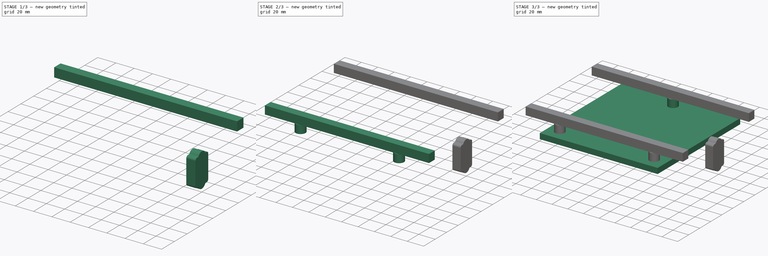
[diagram: build sequence overview — one tinted view per stage of 3, left to right]
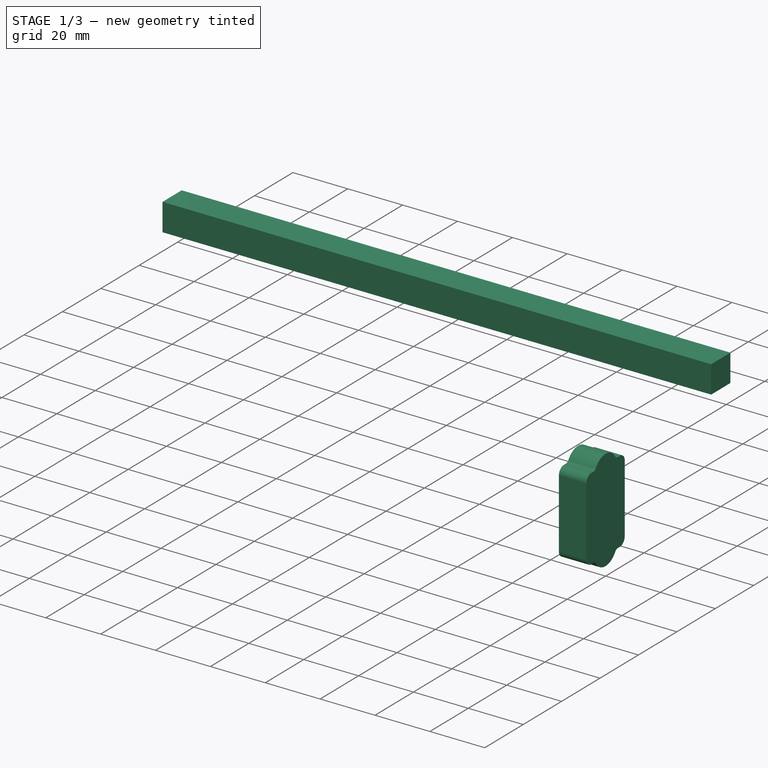
[diagram: stage 1 of 3 — iso view after this stage's code; geometry added in this stage tinted green]
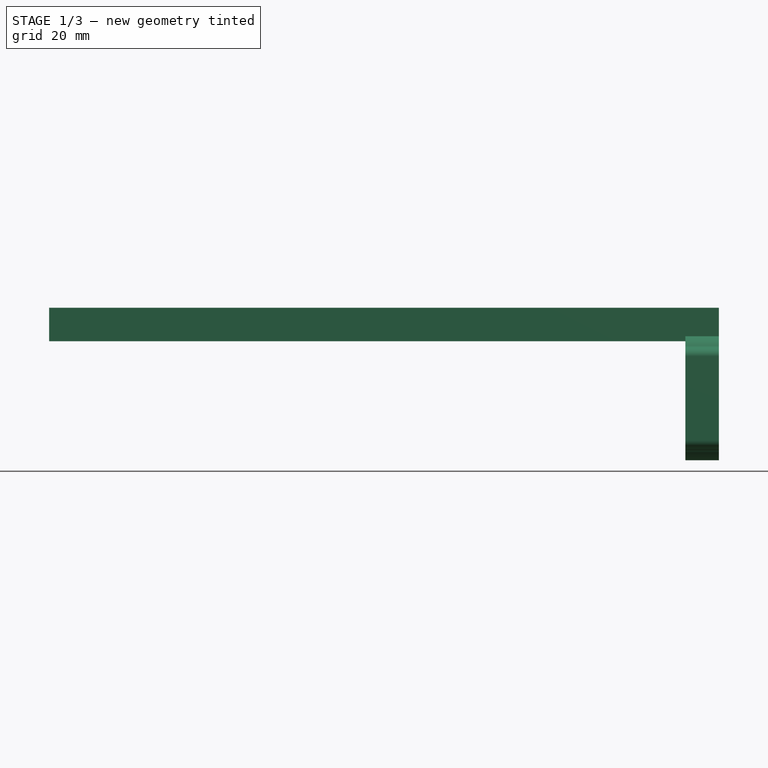
[diagram: stage 1 of 3 — front view after this stage's code; geometry added in this stage tinted green]
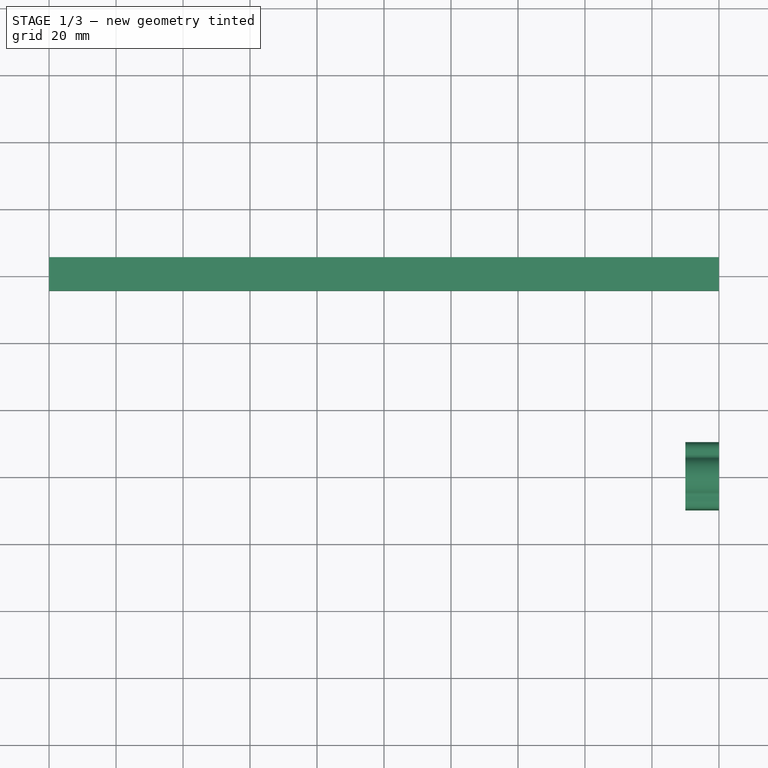
[diagram: stage 1 of 3 — top view after this stage's code; geometry added in this stage tinted green]
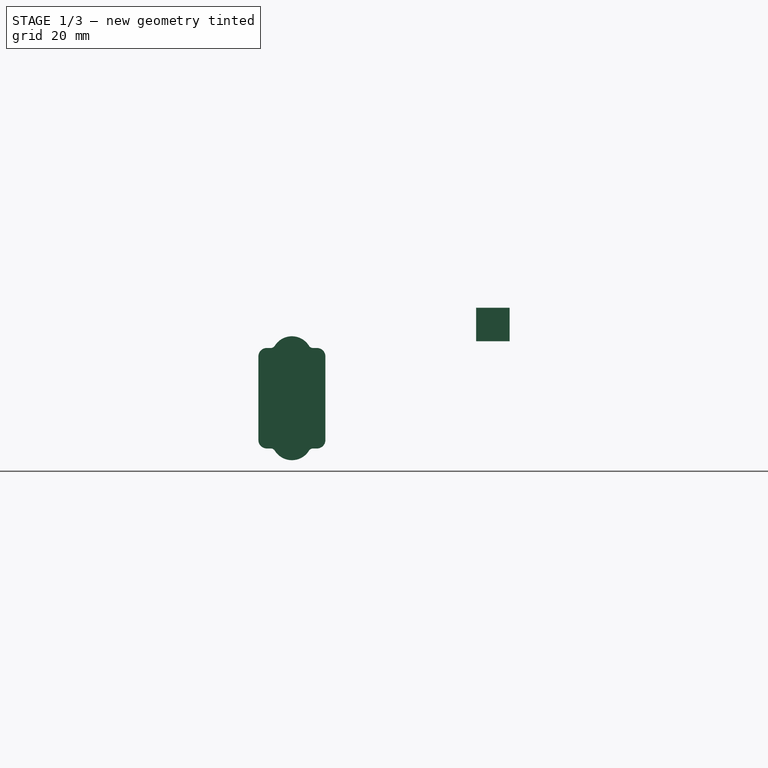
[diagram: stage 1 of 3 — right view after this stage's code; geometry added in this stage tinted green]
FCSTD DOCUMENT  (FreeCAD 0.20R29177 (Git))
Label: miniXY-PrintBed
License: All rights reserved
LicenseURL: http://en.wikipedia.org/wiki/All_rights_reserved
objects: Sketcher::SketchObject×7, PartDesign::Pad×7, PartDesign::Body×7, PartDesign::CoordinateSystem×3, App::DocumentObjectGroup×3, App::Part×3, App::Link×2, App::FeaturePython×1
note: 31 computed .brp shape members not serialized (recipe doc carries the construction recipe); baked Part::Feature solids carry a one-line shape summary decoded from their .brp

FEATURE [PartDesign::Body] Body004  label="FrameFront"
  Group = -> [Sketch004,Pad004]
  Origin = -> Origin006
  Tip = -> Pad004
FEATURE [Sketcher::SketchObject] Sketch005
  FullyConstrained = true
  MapMode = 5
  Placement = pos=(0,0,0) rot=(0.57735,0.57735,0.57735;2.0944rad)
  Support = -> [YZ_Plane007]
  expr: Constraints[11] = <<Variables>>.BedSize / 2 - 15
  expr: Constraints[12] = 10 + <<Variables>>.BedThickness
  sketch-geometry (5):
    g0: LineSegment StartX=55 StartY=27 StartZ=0 EndX=65 EndY=27 EndZ=0
    g1: LineSegment StartX=65 StartY=27 StartZ=0 EndX=65 EndY=17 EndZ=0
    g2: LineSegment StartX=65 StartY=17 StartZ=0 EndX=55 EndY=17 EndZ=0
    g3: LineSegment StartX=55 StartY=17 StartZ=0 EndX=55 EndY=27 EndZ=0
    g4: GeomPoint X=60 Y=22 Z=0
  constraints (13):
    c: Coincident(g0,g1)
    c: Coincident(g1,g2)
    c: Coincident(g2,g3)
    c: Coincident(g3,g0)
    c: Horizontal(g0)
    c: Horizontal(g2)
    c: Vertical(g1)
    c: Vertical(g3)
    c: Symmetric(g0,g1,g4)
    c: Equal(g0,g3)
    c: Distance(g3) = 10
    c: DistanceX(g4) = 60
    c: DistanceY(g2) = 17
FEATURE [PartDesign::Pad] Pad005
  Direction = (1,-2e-16,3e-16)
  Length = 200
  Length2 = 10
  Midplane = true
  Placement = pos=(0,0,0) rot=(0.57735,0.57735,0.57735;2.0944rad)
  Profile = -> Sketch005
  ReferenceAxis = -> Sketch005 [N_Axis]
  Type = 0
  expr: Length = <<Variables>>.GantorySpacing
FEATURE [PartDesign::Body] Body005  label="FrameRear"
  Group = -> [Sketch005,Pad005]
  Origin = -> Origin007
  Tip = -> Pad005
FEATURE [Sketcher::SketchObject] Sketch006
  AttachmentOffset = pos=(0,0,100) rot=(0,0,1;0rad)
  FullyConstrained = true
  MapMode = 5
  Placement = pos=(100,-2.22e-14,2.22e-14) rot=(0.57735,0.57735,0.57735;2.0944rad)
  Support = -> [YZ_Plane008]
  expr: .AttachmentOffset.Base.z = Variables.GantorySpacing / 2
  sketch-geometry (20):
    g0: LineSegment StartX=10 StartY=12.5 StartZ=0 EndX=10 EndY=-12.5 EndZ=0
    g1: LineSegment StartX=-10 StartY=-12.5 StartZ=0 EndX=-10 EndY=12.5 EndZ=0
    g2: ArcOfCircle CenterX=-7.5 CenterY=12.5 CenterZ=0 NormalX=0 NormalY=0 NormalZ=1 AngleXU=0 Radius=2.5 StartAngle=1.5708 EndAngle=3.14159
    g3: GeomPoint X=-10 Y=15 Z=0
    g4: ArcOfCircle CenterX=-7.5 CenterY=-12.5 CenterZ=0 NormalX=0 NormalY=0 NormalZ=1 AngleXU=0 Radius=2.5 StartAngle=3.14159 EndAngle=4.71239
    g5: GeomPoint X=-10 Y=-15 Z=0
    g6: ArcOfCircle CenterX=7.5 CenterY=-12.5 CenterZ=0 NormalX=0 NormalY=0 NormalZ=1 AngleXU=0 Radius=2.5 StartAngle=4.71239 EndAngle=6.28319
    g7: GeomPoint X=10 Y=-15 Z=0
    g8: ArcOfCircle CenterX=7.5 CenterY=12.5 CenterZ=0 NormalX=0 NormalY=0 NormalZ=1 AngleXU=0 Radius=2.5 StartAngle=0 EndAngle=1.5708
    g9: GeomPoint X=10 Y=15 Z=0
    g10: ArcOfCircle CenterX=0 CenterY=12.5 CenterZ=0 NormalX=0 NormalY=0 NormalZ=1 AngleXU=0 Radius=6 StartAngle=0.562536 EndAngle=2.57906
    g11: ArcOfCircle CenterX=-6.34429 CenterY=16.5 CenterZ=0 NormalX=0 NormalY=0 NormalZ=1 AngleXU=0 Radius=1.5 StartAngle=4.71239 EndAngle=5.72065
    g12: ArcOfCircle CenterX=6.34429 CenterY=16.5 CenterZ=0 NormalX=0 NormalY=0 NormalZ=1 AngleXU=0 Radius=1.5 StartAngle=3.70413 EndAngle=4.71239
    g13: ArcOfCircle CenterX=0 CenterY=-12.5 CenterZ=0 NormalX=0 NormalY=0 NormalZ=1 AngleXU=0 Radius=6 StartAngle=3.70413 EndAngle=5.72065
    g14: ArcOfCircle CenterX=-6.34429 CenterY=-16.5 CenterZ=0 NormalX=0 NormalY=0 NormalZ=1 AngleXU=0 Radius=1.5 StartAngle=0.562536 EndAngle=1.5708
    g15: ArcOfCircle CenterX=6.34429 CenterY=-16.5 CenterZ=0 NormalX=0 NormalY=0 NormalZ=1 AngleXU=0 Radius=1.5 StartAngle=1.5708 EndAngle=2.57906
    g16: LineSegment StartX=-7.5 StartY=15 StartZ=0 EndX=-6.34429 EndY=15 EndZ=0
    g17: LineSegment StartX=6.34429 StartY=15 StartZ=0 EndX=7.5 EndY=15 EndZ=0
    g18: LineSegment StartX=-6.34429 StartY=-15 StartZ=0 EndX=-7.5 EndY=-15 EndZ=0
    g19: LineSegment StartX=7.5 StartY=-15 StartZ=0 EndX=6.34429 EndY=-15 EndZ=0
  constraints (46):
    c: Vertical(g0)
    c: Vertical(g1)
    c: Symmetric(g3,g7,g-1)
    c: PointOnObject(g3,g1)
    c: Tangent(g16,g2) = 1.5708
    c: Tangent(g1,g2) = 1.5708
    c: PointOnObject(g5,g1)
    c: Tangent(g1,g4) = 1.5708
    c: Tangent(g18,g4) = 1.5708
    c: PointOnObject(g7,g0)
    c: Tangent(g19,g6) = 1.5708
    c: Tangent(g0,g6) = 1.5708
    c: PointOnObject(g9,g0)
    c: Tangent(g0,g8) = 1.5708
    c: Tangent(g17,g8) = 1.5708
    c: Equal(g2,g4)
    c: Radius(g2) = 2.5
    c: Tangent(g10,g11) = 1.5708
    c: Tangent(g10,g12) = 1.5708
    c: PointOnObject(g10,g-2)
    c: Horizontal(g16)
    c: PointOnObject(g3,g16)
    c: Horizontal(g17)
    c: PointOnObject(g9,g17)
    c: Tangent(g11,g16) = -1.5708
    c: Tangent(g12,g17) = -1.5708
    c: Diameter(g10) = 12
    c: Equal(g11,g12)
    c: Diameter(g11) = 3
    c: Tangent(g14,g13) = 1.5708
    c: Tangent(g13,g15) = 1.5708
    c: Horizontal(g18)
    c: PointOnObject(g5,g18)
    c: Horizontal(g19)
    c: PointOnObject(g7,g19)
    c: Tangent(g14,g18) = -1.5708
    c: Symmetric(g13,g10,g-1)
    c: Tangent(g15,g19) = -1.5708
    c: Equal(g14,g11)
    c: Equal(g15,g11)
    c: Equal(g13,g10)
    c: DistanceY(g5,g3) = 30
    c: DistanceX(g3,g9) = 20
    c: Symmetric(g2,g8,g-2)
    c: Symmetric(g6,g4,g-2)
    c: DistanceY(g13,g10) = 25
FEATURE [PartDesign::Pad] Pad006
  Direction = (1,-2e-16,3e-16)
  Length = 10
  Length2 = 10
  Placement = pos=(0,0,0) rot=(0.57735,0.57735,0.57735;2.0944rad)
  Profile = -> Sketch006
  ReferenceAxis = -> Sketch006 [N_Axis]
  Reversed = true
  Type = 0
FEATURE [PartDesign::Body] Body006  label="CarriageLeftBase"
  Group = -> [Sketch006,Pad006]
  Origin = -> Origin008
  Tip = -> Pad006
FEATURE [PartDesign::CoordinateSystem] LCS_PrintBedOrigin
  AttacherType = Attacher::AttachEngine3D
  AttachmentOffset = pos=(0,0,-22) rot=(0,0,-1;1.5708rad)
  MapMode = 3
  Placement = pos=(-2.4e-15,2.4e-15,22) rot=(0,1,0;3.14159rad)
  Support = -> [Y_Axis001]
FEATURE [App::Part] Part  label="PrintBed"
  Group = -> [Body,Body001,Body002,Body003,Body004,Body005,LCS_PrintBedOrigin]
  Origin = -> Origin001
FEATURE [App::Link] PrintBed  label="PrintBed001"
  AssemblyType = Part::Link
  AttachedBy = #LCS_PrintBedOrigin
  AttachedTo = Parent Assembly#LCS_Origin
  LinkPlacement = pos=(1e-16,0,22) rot=(0,-1,0;3.14159rad)
  LinkedObject = -> Part
  Placement = pos=(1e-16,0,22) rot=(0,-1,0;3.14159rad)
  SolverId = Asm4EE
  expr: Placement = LCS_Origin.Placement * AttachmentOffset * LCS_PrintBedOrigin.Placement ^ -1
FEATURE [App::Link] CarriageLeft  label="CarriageLeft001"
  AttachedBy = #LCS_CarriageLeftOrigin
  AttachedTo = Parent Assembly#LCS_Origin
  LinkPlacement = pos=(0,0,0) rot=(0,-1,0;3.14159rad)
  LinkedObject = -> Part001
  Placement = pos=(0,0,0) rot=(0,-1,0;3.14159rad)
  SolverId = Asm4EE
  expr: Placement = LCS_Origin.Placement * AttachmentOffset * LCS_CarriageLeftOrigin.Placement ^ -1
FEATURE [App::Part] Model
  Group = -> [LCS_Origin,Constraints,Variables,Configurations,PrintBed,CarriageLeft]
  Origin = -> Origin
  Type = Assembly
FEATURE [PartDesign::CoordinateSystem] LCS_CarriageLeftOrigin
  AttacherType = Attacher::AttachEngine3D
  AttachmentOffset = pos=(0,0,0) rot=(0,0,-1;1.5708rad)
  MapMode = 3
  Placement = pos=(0,0,0) rot=(0,1,0;3.14159rad)
  Support = -> [Y_Axis009]
FEATURE [App::Part] Part001  label="CarriageLeft"
  Group = -> [Body006,LCS_CarriageLeftOrigin]
  Origin = -> Origin009
FEATURE [App::DocumentObjectGroup] Parts
  Group = -> [Part,Part001]
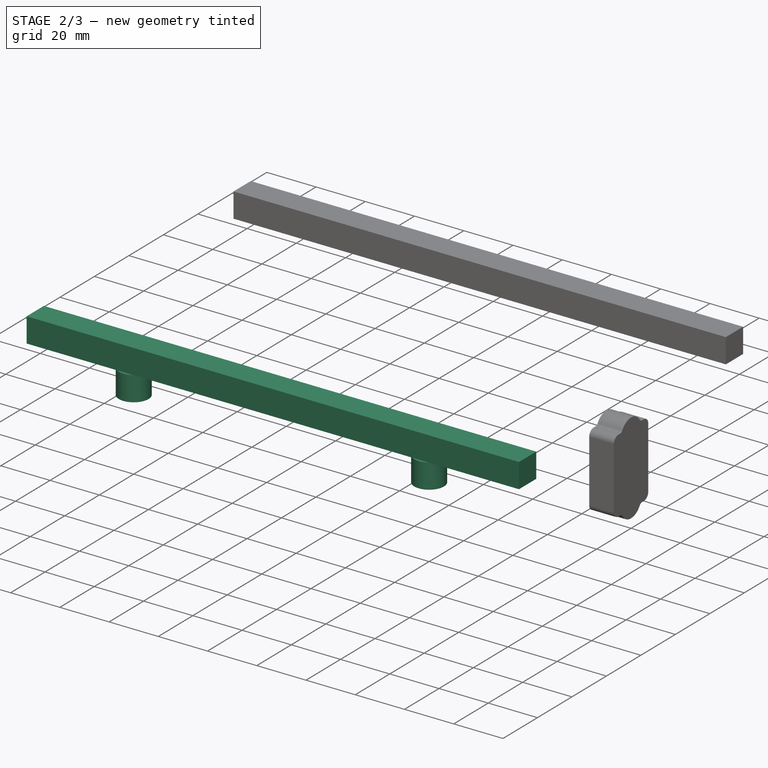
[diagram: stage 2 of 3 — iso view after this stage's code; geometry added in this stage tinted green]
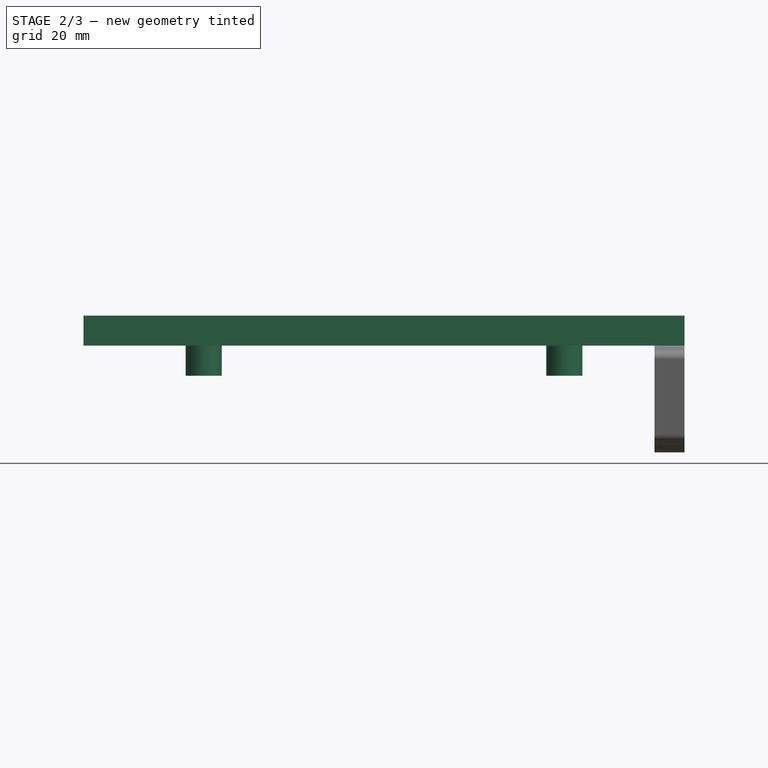
[diagram: stage 2 of 3 — front view after this stage's code; geometry added in this stage tinted green]
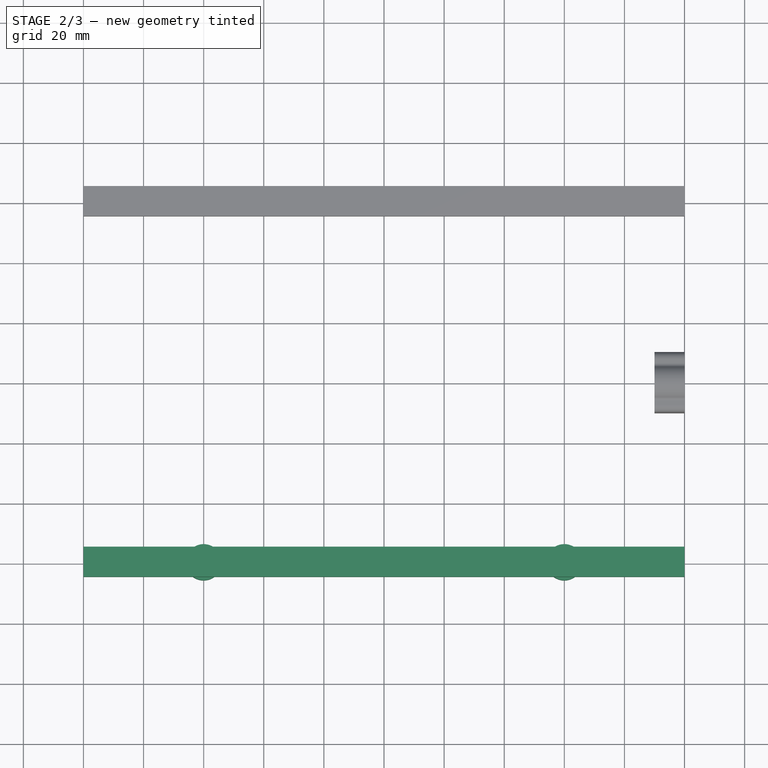
[diagram: stage 2 of 3 — top view after this stage's code; geometry added in this stage tinted green]
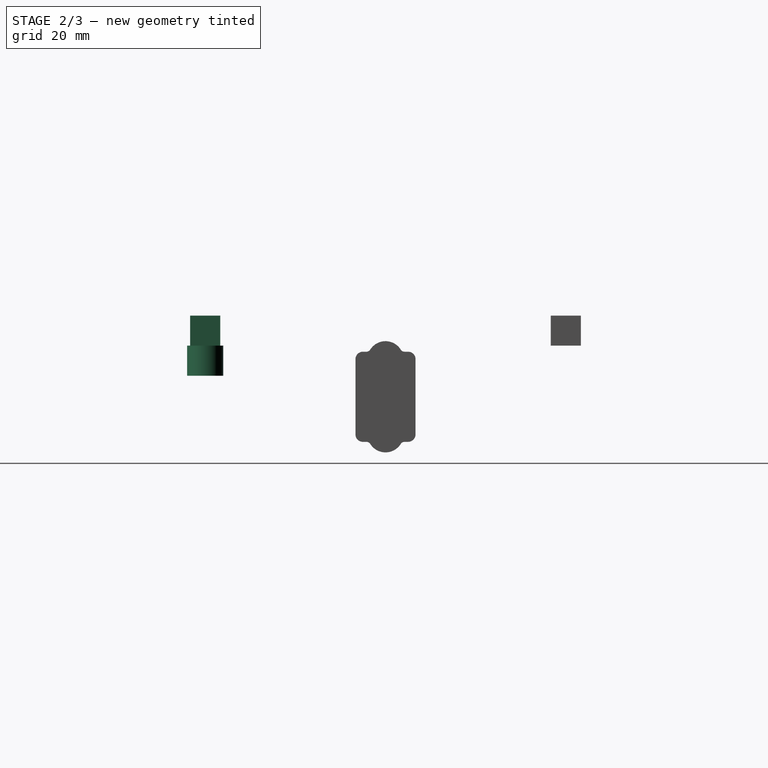
[diagram: stage 2 of 3 — right view after this stage's code; geometry added in this stage tinted green]
FEATURE [PartDesign::Body] Body001  label="BootRear"
  Group = -> [Sketch001,Pad001]
  Origin = -> Origin003
  Tip = -> Pad001
FEATURE [PartDesign::Pad] Pad002
  Direction = (0,0,1)
  Length = 10
  Length2 = 10
  Profile = -> Sketch002
  ReferenceAxis = -> Sketch002 [N_Axis]
  Type = 0
FEATURE [PartDesign::Body] Body002  label="BootFrontLeft"
  Group = -> [Sketch002,Pad002]
  Origin = -> Origin004
  Tip = -> Pad002
FEATURE [PartDesign::Pad] Pad003
  Direction = (0,0,1)
  Length = 10
  Length2 = 10
  Profile = -> Sketch003
  ReferenceAxis = -> Sketch003 [N_Axis]
  Type = 0
FEATURE [PartDesign::Body] Body003  label="BootFrontRight"
  Group = -> [Sketch003,Pad003]
  Origin = -> Origin005
  Tip = -> Pad003
FEATURE [Sketcher::SketchObject] Sketch004
  FullyConstrained = true
  MapMode = 5
  Placement = pos=(0,0,0) rot=(0.57735,0.57735,0.57735;2.0944rad)
  Support = -> [YZ_Plane006]
  expr: Constraints[11] = -(<<Variables>>.BedSize / 2 - 15)
  expr: Constraints[12] = 10 + <<Variables>>.BedThickness
  sketch-geometry (5):
    g0: LineSegment StartX=-65 StartY=27 StartZ=0 EndX=-55 EndY=27 EndZ=0
    g1: LineSegment StartX=-55 StartY=27 StartZ=0 EndX=-55 EndY=17 EndZ=0
    g2: LineSegment StartX=-55 StartY=17 StartZ=0 EndX=-65 EndY=17 EndZ=0
    g3: LineSegment StartX=-65 StartY=17 StartZ=0 EndX=-65 EndY=27 EndZ=0
    g4: GeomPoint X=-60 Y=22 Z=0
  constraints (13):
    c: Coincident(g0,g1)
    c: Coincident(g1,g2)
    c: Coincident(g2,g3)
    c: Coincident(g3,g0)
    c: Horizontal(g0)
    c: Horizontal(g2)
    c: Vertical(g1)
    c: Vertical(g3)
    c: Equal(g0,g3)
    c: Distance(g3) = 10
    c: Symmetric(g0,g1,g4)
    c: DistanceX(g4) = -60
    c: DistanceY(g2) = 17
FEATURE [PartDesign::Pad] Pad004
  Direction = (1,-2e-16,3e-16)
  Length = 200
  Length2 = 10
  Midplane = true
  Placement = pos=(0,0,0) rot=(0.57735,0.57735,0.57735;2.0944rad)
  Profile = -> Sketch004
  ReferenceAxis = -> Sketch004 [N_Axis]
  Type = 0
  expr: Length = Variables.GantorySpacing
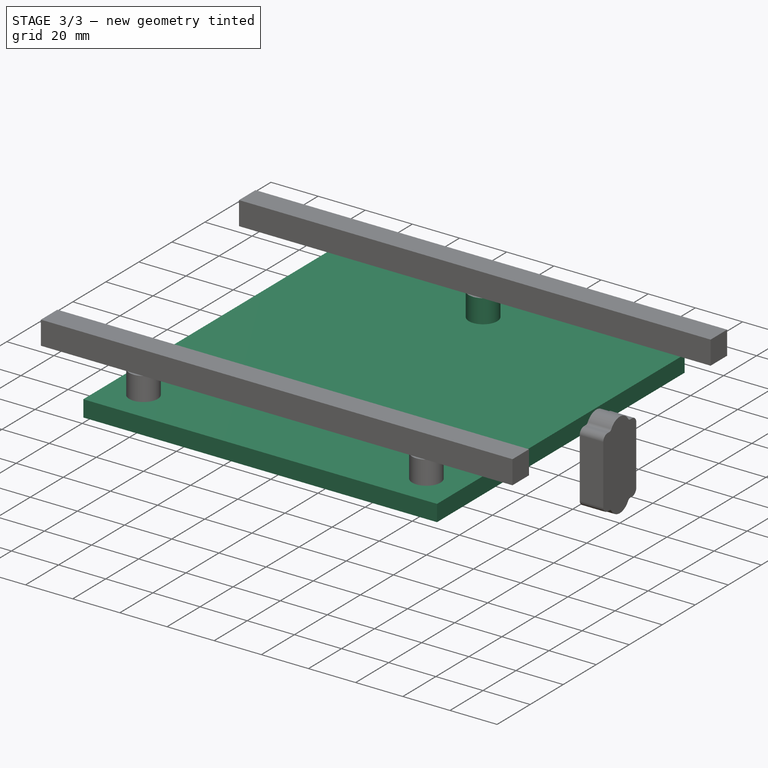
[diagram: stage 3 of 3 — iso view after this stage's code; geometry added in this stage tinted green]
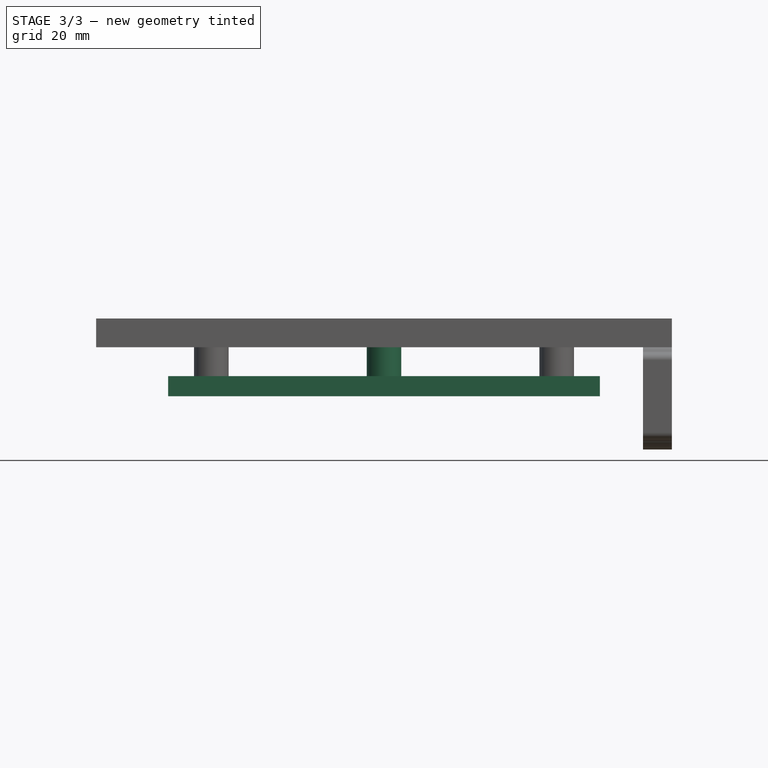
[diagram: stage 3 of 3 — front view after this stage's code; geometry added in this stage tinted green]
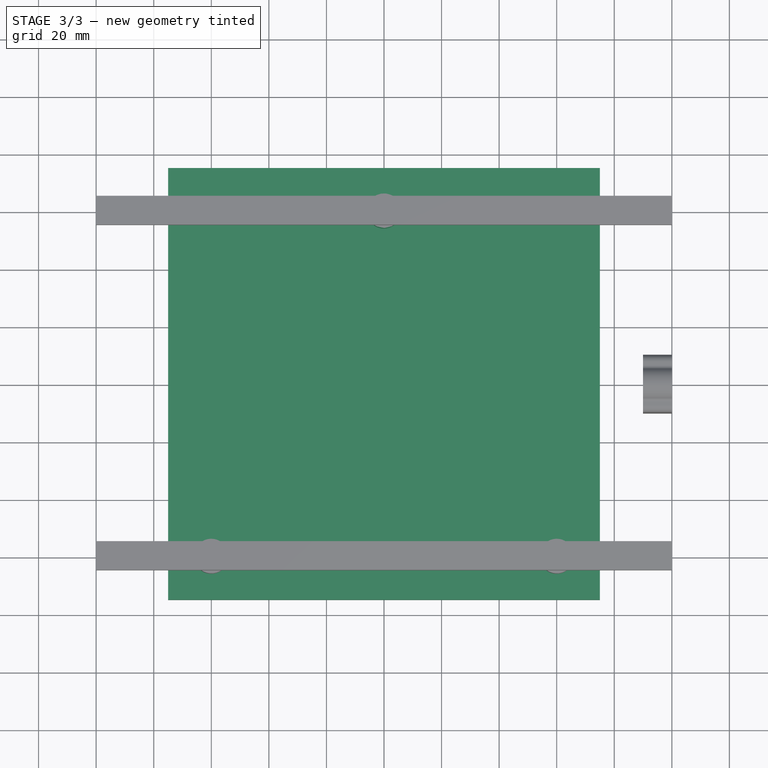
[diagram: stage 3 of 3 — top view after this stage's code; geometry added in this stage tinted green]
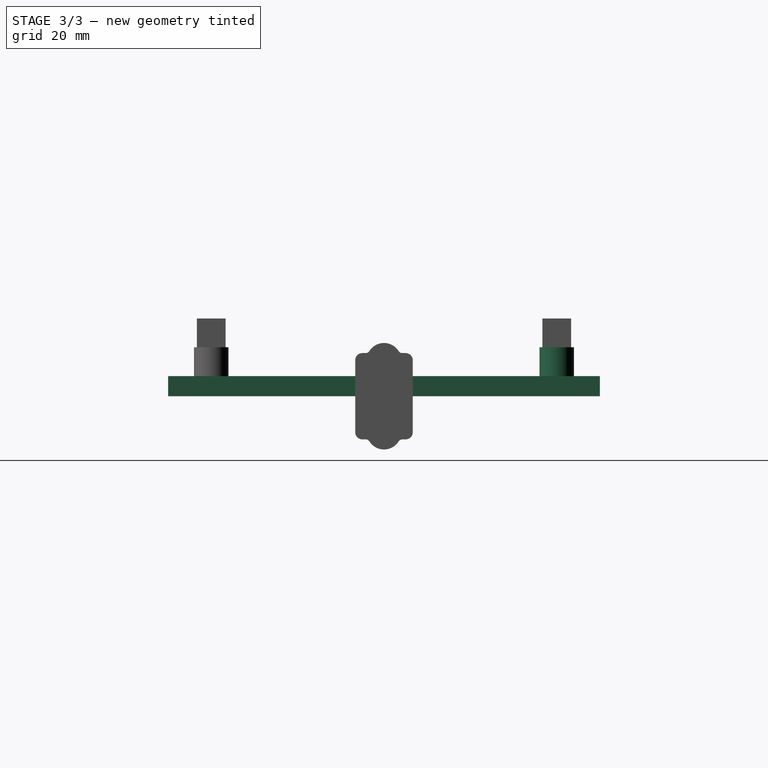
[diagram: stage 3 of 3 — right view after this stage's code; geometry added in this stage tinted green]
FEATURE [PartDesign::CoordinateSystem] LCS_Origin
  AttacherType = Attacher::AttachEngine3D
  MapMode = 2
  Support = -> [X_Axis]
FEATURE [App::DocumentObjectGroup] Constraints
FEATURE [App::FeaturePython] Variables  # WARN: FeaturePython — macro-defined, semantics opaque (R4)
  BedSize = 150
  BedThickness = 7
  GantorySpacing = 200
  Type = App::PropertyContainer
FEATURE [App::DocumentObjectGroup] Configurations
FEATURE [Sketcher::SketchObject] Sketch
  FullyConstrained = true
  MapMode = 5
  Support = -> [XY_Plane002]
  expr: Constraints[10] = <<Variables>>.BedSize
  sketch-geometry (4):
    g0: LineSegment StartX=-75 StartY=75 StartZ=0 EndX=75 EndY=75 EndZ=0
    g1: LineSegment StartX=75 StartY=75 StartZ=0 EndX=75 EndY=-75 EndZ=0
    g2: LineSegment StartX=75 StartY=-75 StartZ=0 EndX=-75 EndY=-75 EndZ=0
    g3: LineSegment StartX=-75 StartY=-75 StartZ=0 EndX=-75 EndY=75 EndZ=0
  constraints (11):
    c: Coincident(g0,g1)
    c: Coincident(g1,g2)
    c: Coincident(g2,g3)
    c: Coincident(g3,g0)
    c: Horizontal(g0)
    c: Horizontal(g2)
    c: Vertical(g1)
    c: Vertical(g3)
    c: Symmetric(g0,g1,g-1)
    c: Equal(g0,g3)
    c: Distance(g3) = 150
FEATURE [PartDesign::Pad] Pad
  Direction = (0,0,1)
  Length = 7
  Length2 = 10
  Profile = -> Sketch
  ReferenceAxis = -> Sketch [N_Axis]
  Type = 0
  expr: Length = <<Variables>>.BedThickness
FEATURE [PartDesign::Body] Body  label="Bed"
  Group = -> [Sketch,Pad]
  Origin = -> Origin002
  Tip = -> Pad
FEATURE [Sketcher::SketchObject] Sketch001
  AttachmentOffset = pos=(0,0,7) rot=(0,0,1;0rad)
  FullyConstrained = false
  MapMode = 5
  Placement = pos=(0,0,7) rot=(0,0,1;0rad)
  Support = -> [XY_Plane003]
  expr: .AttachmentOffset.Base.z = <<Variables>>.BedThickness
  expr: Constraints[12] = <<Variables>>.BedSize / 2 - 15
  expr: Constraints[9] = <<Variables>>.BedSize
  sketch-geometry (5):
    g0: LineSegment StartX=-75 StartY=58.3105 StartZ=0 EndX=75 EndY=58.3105 EndZ=0
    g1: LineSegment StartX=75 StartY=58.3105 StartZ=0 EndX=75 EndY=-58.3105 EndZ=0
    g2: LineSegment StartX=75 StartY=-58.3105 StartZ=0 EndX=-75 EndY=-58.3105 EndZ=0
    g3: LineSegment StartX=-75 StartY=-58.3105 StartZ=0 EndX=-75 EndY=91.6895 EndZ=0
    g4: Circle CenterX=0 CenterY=60 CenterZ=0 NormalX=0 NormalY=0 NormalZ=1 AngleXU=0 Radius=6
  constraints (13):
    c: Coincident(g0,g1)
    c: Coincident(g1,g2)
    c: Coincident(g2,g3)
    c: Horizontal(g0)
    c: Horizontal(g2)
    c: Vertical(g1)
    c: Vertical(g3)
    c: Symmetric(g0,g1,g-1)
    c: Equal(g0,g3)
    c: Distance(g3) = 150
    c: PointOnObject(g4,g-2)
    c: Diameter(g4) = 12
    c: DistanceY(g4) = 60
FEATURE [Sketcher::SketchObject] Sketch002
  AttachmentOffset = pos=(0,0,7) rot=(0,0,1;0rad)
  FullyConstrained = true
  MapMode = 5
  Placement = pos=(0,0,7) rot=(0,0,1;0rad)
  Support = -> [XY_Plane004]
  expr: .AttachmentOffset.Base.z = <<Variables>>.BedThickness
  expr: Constraints[10] = <<Variables>>.BedSize
  expr: Constraints[11] = -(<<Variables>>.BedSize / 2 - 15)
  expr: Constraints[12] = -(<<Variables>>.BedSize / 2 - 15)
  sketch-geometry (5):
    g0: LineSegment StartX=-75 StartY=75 StartZ=0 EndX=75 EndY=75 EndZ=0
    g1: LineSegment StartX=75 StartY=75 StartZ=0 EndX=75 EndY=-75 EndZ=0
    g2: LineSegment StartX=75 StartY=-75 StartZ=0 EndX=-75 EndY=-75 EndZ=0
    g3: LineSegment StartX=-75 StartY=-75 StartZ=0 EndX=-75 EndY=75 EndZ=0
    g4: Circle CenterX=-60 CenterY=-60 CenterZ=0 NormalX=0 NormalY=0 NormalZ=1 AngleXU=0 Radius=6
  constraints (14):
    c: Coincident(g0,g1)
    c: Coincident(g1,g2)
    c: Coincident(g2,g3)
    c: Coincident(g3,g0)
    c: Horizontal(g0)
    c: Horizontal(g2)
    c: Vertical(g1)
    c: Vertical(g3)
    c: Symmetric(g1,g0,g-1)
    c: Equal(g0,g3)
    c: Distance(g3) = 150
    c: DistanceY(g4) = -60
    c: DistanceX(g4) = -60
    c: Diameter(g4) = 12
FEATURE [Sketcher::SketchObject] Sketch003
  AttachmentOffset = pos=(0,0,7) rot=(0,0,1;0rad)
  FullyConstrained = true
  MapMode = 5
  Placement = pos=(0,0,7) rot=(0,0,1;0rad)
  Support = -> [XY_Plane005]
  expr: .AttachmentOffset.Base.z = <<Variables>>.BedThickness
  expr: Constraints[10] = <<Variables>>.BedSize
  expr: Constraints[11] = <<Variables>>.BedSize / 2 - 15
  expr: Constraints[12] = -(<<Variables>>.BedSize / 2 - 15)
  sketch-geometry (5):
    g0: LineSegment StartX=-75 StartY=75 StartZ=0 EndX=75 EndY=75 EndZ=0
    g1: LineSegment StartX=75 StartY=75 StartZ=0 EndX=75 EndY=-75 EndZ=0
    g2: LineSegment StartX=75 StartY=-75 StartZ=0 EndX=-75 EndY=-75 EndZ=0
    g3: LineSegment StartX=-75 StartY=-75 StartZ=0 EndX=-75 EndY=75 EndZ=0
    g4: Circle CenterX=60 CenterY=-60 CenterZ=0 NormalX=0 NormalY=0 NormalZ=1 AngleXU=0 Radius=6
  constraints (14):
    c: Coincident(g0,g1)
    c: Coincident(g1,g2)
    c: Coincident(g2,g3)
    c: Coincident(g3,g0)
    c: Horizontal(g0)
    c: Horizontal(g2)
    c: Vertical(g1)
    c: Vertical(g3)
    c: Symmetric(g0,g1,g-1)
    c: Equal(g0,g3)
    c: Distance(g3) = 150
    c: DistanceX(g4) = 60
    c: DistanceY(g4) = -60
    c: Diameter(g4) = 12
FEATURE [PartDesign::Pad] Pad001
  Direction = (0,0,1)
  Length = 10
  Length2 = 10
  Profile = -> Sketch001
  ReferenceAxis = -> Sketch001 [N_Axis]
  Type = 0
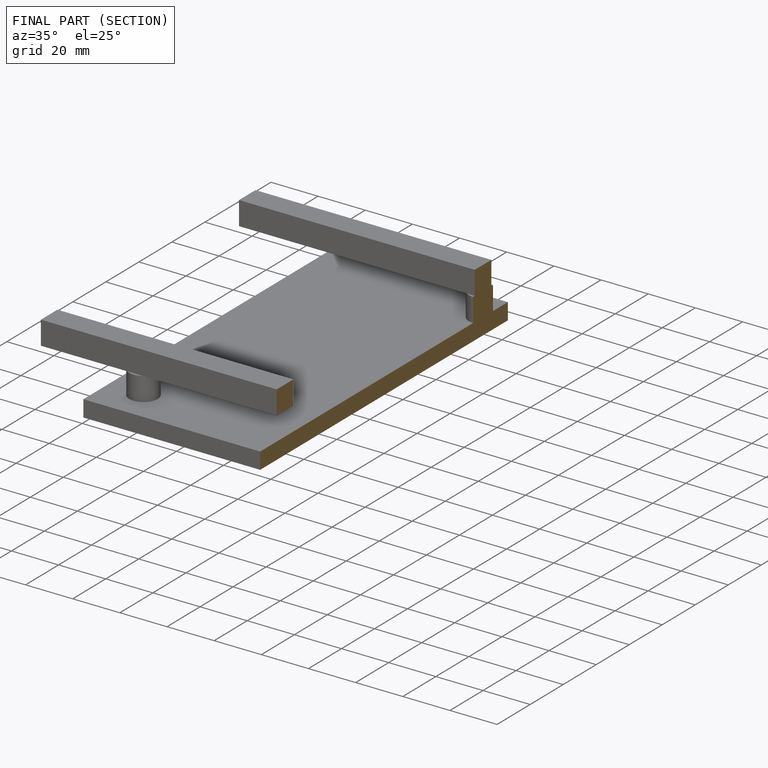
[diagram: finished part — half-section view (interior)]
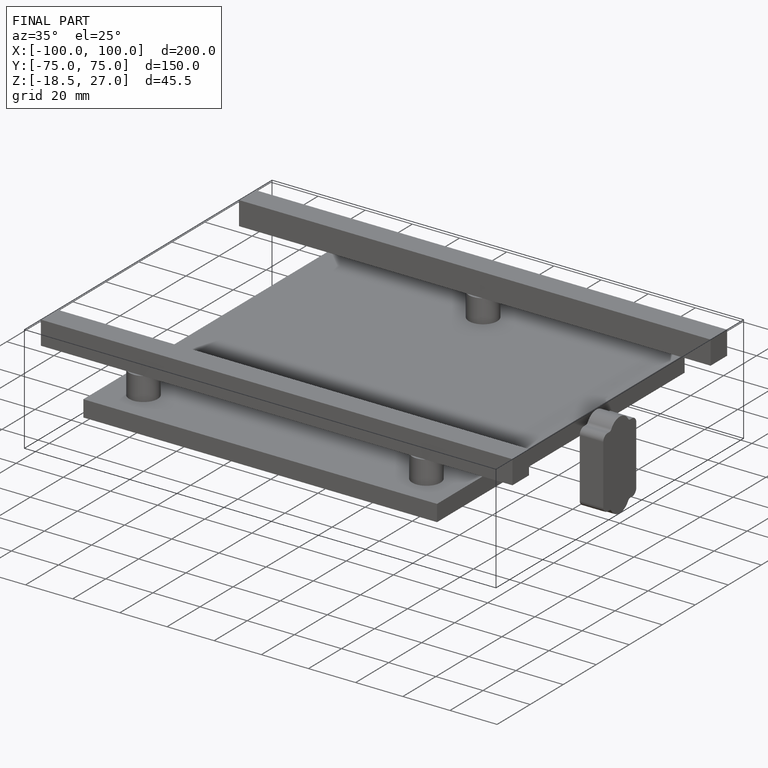
[diagram: finished part — iso view with bounding-box wireframe]
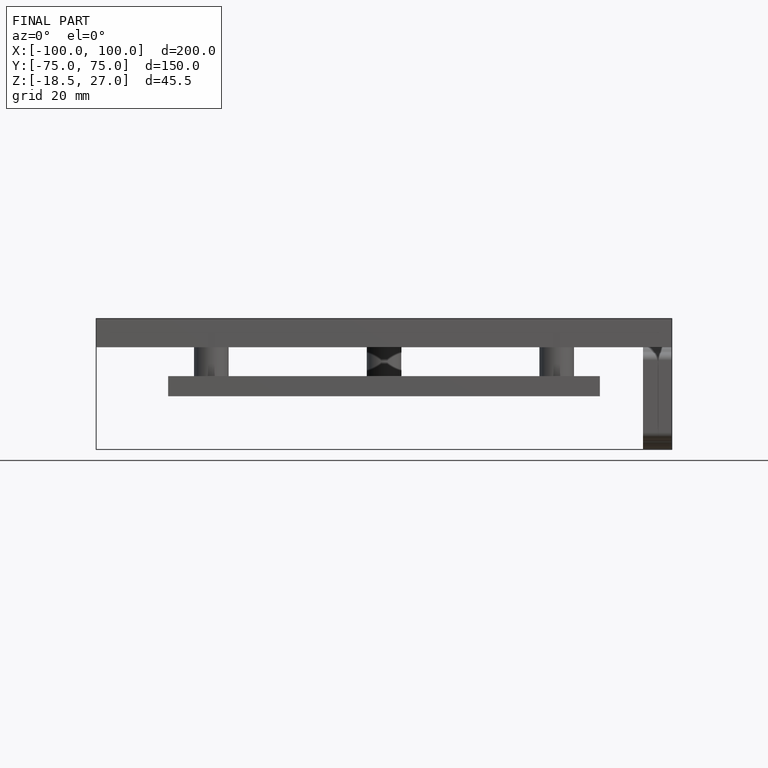
[diagram: finished part — front view with bounding-box wireframe]
